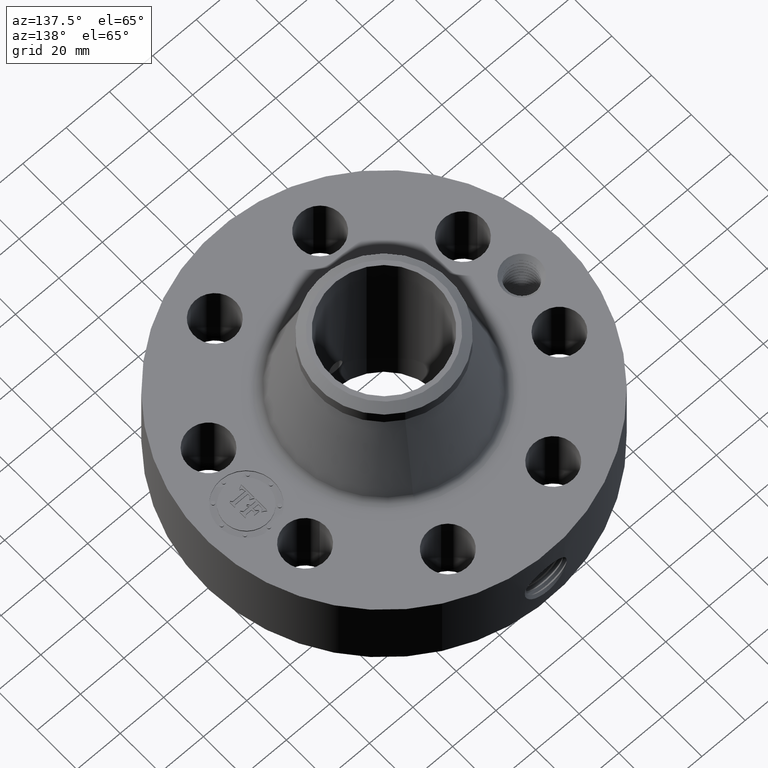
[diagram: clean part render]
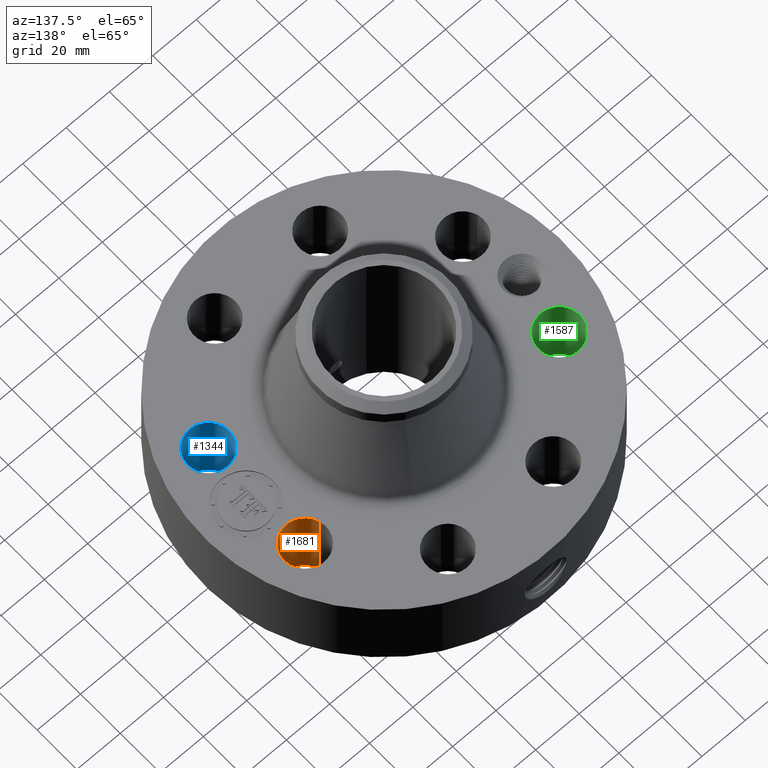
[diagram: same view with three faces highlighted in distinct colors, each labeled with its STEP entity id]
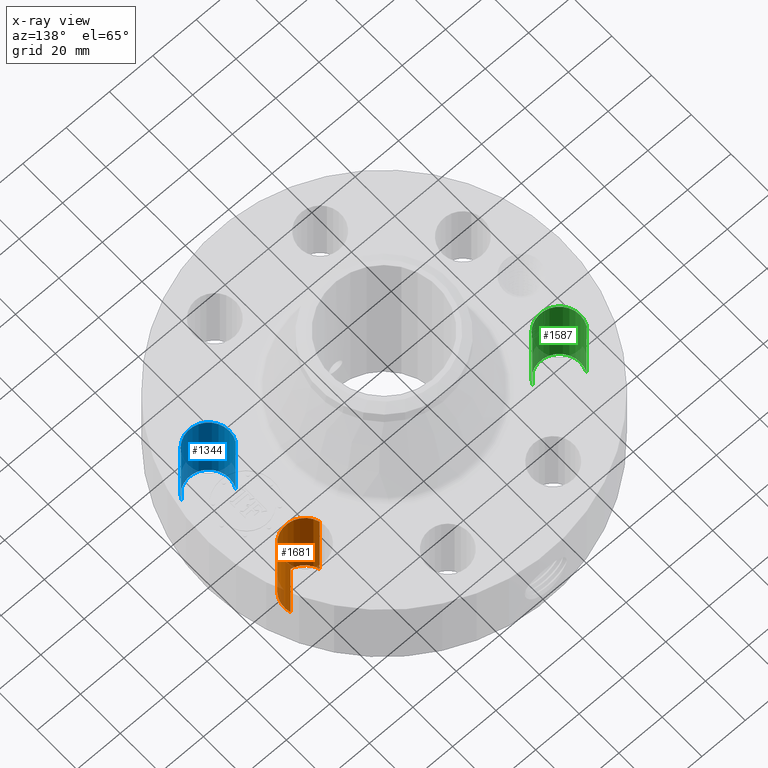
[diagram: x-ray of the same camera — body ghosted, the three highlighted faces saturated]
A machine part, auxiliary view with three faces highlighted in distinct colors.
The next image is the same camera in x-ray (body ghosted, the three faces saturated) — at least one of them is partly hidden behind the body in this view.
Their STEP definitions:

[orange] entity #1681 — the highlighted cylindrical surface (edge-blend (fillet) strip) has radius 9.525 mm, axis along (0, 0, -1).
#391=AXIS2_PLACEMENT_3D('Circle Axis2P3D',#389,#390,$) ;
#713=AXIS2_PLACEMENT_3D('Circle Axis2P3D',#711,#712,$) ;
#1656=AXIS2_PLACEMENT_3D('Cylinder Axis2P3D',#1653,#1654,#1655) ;
#384=CARTESIAN_POINT('Vertex',(1.94986772004,0.851131256738,0.250000000001)) ;
#386=CARTESIAN_POINT('Vertex',(2.66952994253,1.0622859051,0.250000000001)) ;
#389=CARTESIAN_POINT('Axis2P3D Location',(2.30969883129,0.956708580917,0.250000000001)) ;
#711=CARTESIAN_POINT('Axis2P3D Location',(2.30969883129,0.956708580917,1.75000000001)) ;
#715=CARTESIAN_POINT('Vertex',(2.66952994253,1.0622859051,1.75000000001)) ;
#717=CARTESIAN_POINT('Vertex',(1.94986772004,0.851131256738,1.75000000001)) ;
#1653=CARTESIAN_POINT('Axis2P3D Location',(2.30969883129,0.956708580917,1.74606299213)) ;
#1658=CARTESIAN_POINT('Line Origine',(1.94986772004,0.851131256738,1.)) ;
#1663=CARTESIAN_POINT('Line Origine',(2.66952994253,1.0622859051,1.)) ;
#390=DIRECTION('Axis2P3D Direction',(0.,0.,-0.0393700787402)) ;
#712=DIRECTION('Axis2P3D Direction',(0.,0.,-0.0393700787402)) ;
#1654=DIRECTION('Axis2P3D Direction',(0.,0.,-0.0393700787402)) ;
#1655=DIRECTION('Axis2P3D XDirection',(0.0377775444876,0.0110842335096,0.)) ;
#1659=DIRECTION('Vector Direction',(0.,0.,-0.0393700787402)) ;
#1664=DIRECTION('Vector Direction',(0.,0.,-0.0393700787402)) ;
#1660=VECTOR('Line Direction',#1659,0.0393700787402) ;
#1665=VECTOR('Line Direction',#1664,0.0393700787402) ;
#1676=ORIENTED_EDGE('',*,*,#1667,.F.) ;
#1677=ORIENTED_EDGE('',*,*,#393,.T.) ;
#1678=ORIENTED_EDGE('',*,*,#1662,.T.) ;
#1679=ORIENTED_EDGE('',*,*,#719,.F.) ;
#1681=ADVANCED_FACE('PartBody',(#1680),#1657,.F.) ;
#392=CIRCLE('generated circle',#391,0.375000000001) ;
#714=CIRCLE('generated circle',#713,0.375000000001) ;
#1657=CYLINDRICAL_SURFACE('generated cylinder',#1656,0.375000000001) ;
#393=EDGE_CURVE('',#387,#385,#392,.T.) ;
#719=EDGE_CURVE('',#716,#718,#714,.T.) ;
#1662=EDGE_CURVE('',#385,#718,#1661,.F.) ;
#1667=EDGE_CURVE('',#387,#716,#1666,.F.) ;
#1675=EDGE_LOOP('',(#1676,#1677,#1678,#1679)) ;
#1680=FACE_OUTER_BOUND('',#1675,.T.) ;
#1661=LINE('Line',#1658,#1660) ;
#1666=LINE('Line',#1663,#1665) ;
#385=VERTEX_POINT('',#384) ;
#387=VERTEX_POINT('',#386) ;
#716=VERTEX_POINT('',#715) ;
#718=VERTEX_POINT('',#717) ;

[blue] entity #1344 — the highlighted cylindrical surface (edge-blend (fillet) strip) has radius 9.525 mm, axis along (0, -0, -1).
#238=AXIS2_PLACEMENT_3D('Circle Axis2P3D',#236,#237,$) ;
#578=AXIS2_PLACEMENT_3D('Circle Axis2P3D',#576,#577,$) ;
#1326=AXIS2_PLACEMENT_3D('Cylinder Axis2P3D',#1323,#1324,#1325) ;
#236=CARTESIAN_POINT('Axis2P3D Location',(2.30969883129,-0.956708580917,0.250000000001)) ;
#240=CARTESIAN_POINT('Vertex',(2.638792292,-1.13649315789,0.250000000001)) ;
#242=CARTESIAN_POINT('Vertex',(1.98060537058,-0.776924003939,0.250000000001)) ;
#571=CARTESIAN_POINT('Vertex',(1.98060537058,-0.776924003939,1.75000000001)) ;
#573=CARTESIAN_POINT('Vertex',(2.638792292,-1.13649315789,1.75000000001)) ;
#576=CARTESIAN_POINT('Axis2P3D Location',(2.30969883129,-0.956708580917,1.75000000001)) ;
#1323=CARTESIAN_POINT('Axis2P3D Location',(2.30969883129,-0.956708580917,1.74606299213)) ;
#1328=CARTESIAN_POINT('Line Origine',(2.638792292,-1.13649315789,1.)) ;
#1333=CARTESIAN_POINT('Line Origine',(1.98060537058,-0.776924003939,1.)) ;
#237=DIRECTION('Axis2P3D Direction',(0.,0.,-0.0393700787402)) ;
#577=DIRECTION('Axis2P3D Direction',(0.,0.,-0.0393700787402)) ;
#1324=DIRECTION('Axis2P3D Direction',(0.,-0.,-0.0393700787402)) ;
#1325=DIRECTION('Axis2P3D XDirection',(-0.0345504945626,0.0188750212049,0.)) ;
#1329=DIRECTION('Vector Direction',(0.,0.,-0.0393700787402)) ;
#1334=DIRECTION('Vector Direction',(0.,0.,-0.0393700787402)) ;
#1330=VECTOR('Line Direction',#1329,0.0393700787402) ;
#1335=VECTOR('Line Direction',#1334,0.0393700787402) ;
#1339=ORIENTED_EDGE('',*,*,#1332,.F.) ;
#1340=ORIENTED_EDGE('',*,*,#244,.T.) ;
#1341=ORIENTED_EDGE('',*,*,#1337,.T.) ;
#1342=ORIENTED_EDGE('',*,*,#580,.F.) ;
#1344=ADVANCED_FACE('PartBody',(#1343),#1327,.F.) ;
#239=CIRCLE('generated circle',#238,0.375000000001) ;
#579=CIRCLE('generated circle',#578,0.375000000001) ;
#1327=CYLINDRICAL_SURFACE('generated cylinder',#1326,0.375000000001) ;
#244=EDGE_CURVE('',#241,#243,#239,.T.) ;
#580=EDGE_CURVE('',#574,#572,#579,.T.) ;
#1332=EDGE_CURVE('',#241,#574,#1331,.F.) ;
#1337=EDGE_CURVE('',#243,#572,#1336,.F.) ;
#1338=EDGE_LOOP('',(#1339,#1340,#1341,#1342)) ;
#1343=FACE_OUTER_BOUND('',#1338,.T.) ;
#1331=LINE('Line',#1328,#1330) ;
#1336=LINE('Line',#1333,#1335) ;
#241=VERTEX_POINT('',#240) ;
#243=VERTEX_POINT('',#242) ;
#572=VERTEX_POINT('',#571) ;
#574=VERTEX_POINT('',#573) ;

[green] entity #1587 — the highlighted cylindrical surface (edge-blend (fillet) strip) has radius 9.525 mm, axis along (-0, 0, -1).
#328=AXIS2_PLACEMENT_3D('Circle Axis2P3D',#326,#327,$) ;
#668=AXIS2_PLACEMENT_3D('Circle Axis2P3D',#666,#667,$) ;
#1569=AXIS2_PLACEMENT_3D('Cylinder Axis2P3D',#1566,#1567,#1568) ;
#326=CARTESIAN_POINT('Axis2P3D Location',(-2.30969883129,0.956708580917,0.250000000001)) ;
#330=CARTESIAN_POINT('Vertex',(-1.98060537058,0.776924003939,0.250000000001)) ;
#332=CARTESIAN_POINT('Vertex',(-2.638792292,1.13649315789,0.250000000001)) ;
#661=CARTESIAN_POINT('Vertex',(-2.638792292,1.13649315789,1.75000000001)) ;
#663=CARTESIAN_POINT('Vertex',(-1.98060537058,0.776924003939,1.75000000001)) ;
#666=CARTESIAN_POINT('Axis2P3D Location',(-2.30969883129,0.956708580917,1.75000000001)) ;
#1566=CARTESIAN_POINT('Axis2P3D Location',(-2.30969883129,0.956708580917,1.74606299213)) ;
#1571=CARTESIAN_POINT('Line Origine',(-1.98060537058,0.776924003939,1.)) ;
#1576=CARTESIAN_POINT('Line Origine',(-2.638792292,1.13649315789,1.)) ;
#327=DIRECTION('Axis2P3D Direction',(0.,0.,-0.0393700787402)) ;
#667=DIRECTION('Axis2P3D Direction',(0.,0.,-0.0393700787402)) ;
#1567=DIRECTION('Axis2P3D Direction',(-0.,0.,-0.0393700787402)) ;
#1568=DIRECTION('Axis2P3D XDirection',(-0.0345504945626,0.0188750212049,0.)) ;
#1572=DIRECTION('Vector Direction',(0.,0.,-0.0393700787402)) ;
#1577=DIRECTION('Vector Direction',(0.,0.,-0.0393700787402)) ;
#1573=VECTOR('Line Direction',#1572,0.0393700787402) ;
#1578=VECTOR('Line Direction',#1577,0.0393700787402) ;
#1582=ORIENTED_EDGE('',*,*,#1575,.F.) ;
#1583=ORIENTED_EDGE('',*,*,#334,.T.) ;
#1584=ORIENTED_EDGE('',*,*,#1580,.T.) ;
#1585=ORIENTED_EDGE('',*,*,#670,.F.) ;
#1587=ADVANCED_FACE('PartBody',(#1586),#1570,.F.) ;
#329=CIRCLE('generated circle',#328,0.375000000001) ;
#669=CIRCLE('generated circle',#668,0.375000000001) ;
#1570=CYLINDRICAL_SURFACE('generated cylinder',#1569,0.375000000001) ;
#334=EDGE_CURVE('',#331,#333,#329,.T.) ;
#670=EDGE_CURVE('',#664,#662,#669,.T.) ;
#1575=EDGE_CURVE('',#331,#664,#1574,.F.) ;
#1580=EDGE_CURVE('',#333,#662,#1579,.F.) ;
#1581=EDGE_LOOP('',(#1582,#1583,#1584,#1585)) ;
#1586=FACE_OUTER_BOUND('',#1581,.T.) ;
#1574=LINE('Line',#1571,#1573) ;
#1579=LINE('Line',#1576,#1578) ;
#331=VERTEX_POINT('',#330) ;
#333=VERTEX_POINT('',#332) ;
#662=VERTEX_POINT('',#661) ;
#664=VERTEX_POINT('',#663) ;